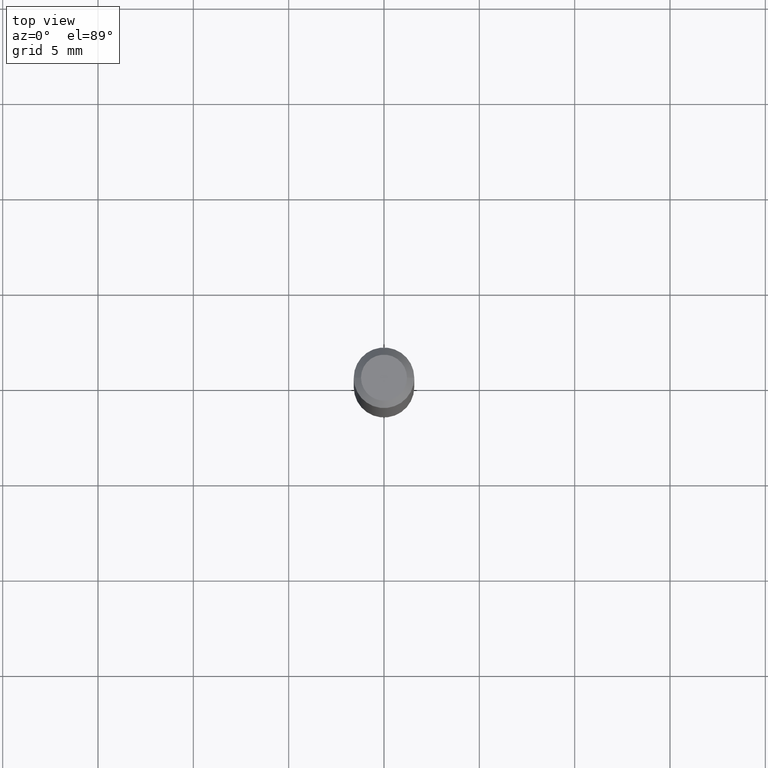
[diagram: clean part render]
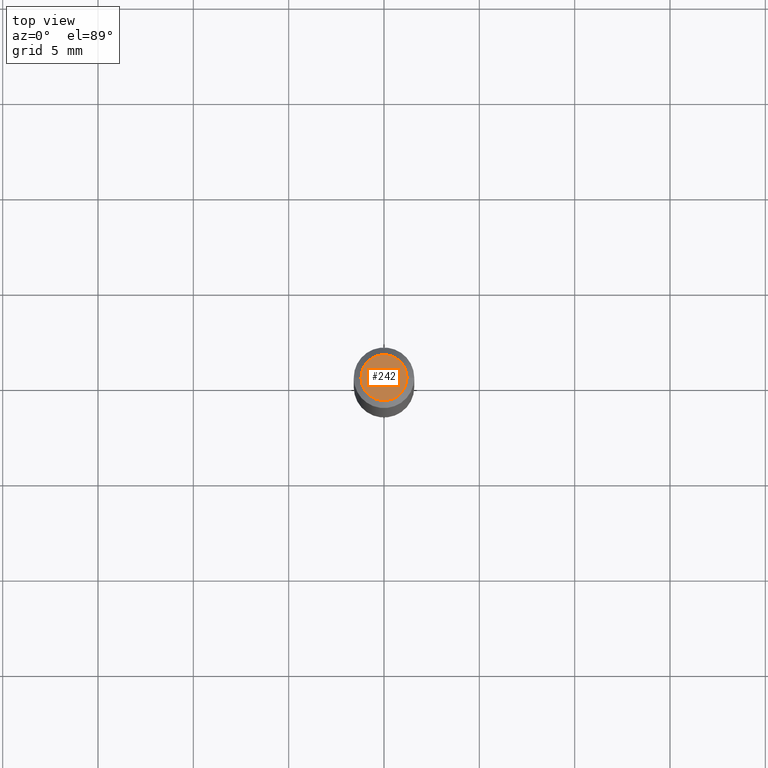
[diagram: same view with one face highlighted and labeled with its STEP entity id]
A machine part, top view. The second image highlights one B-rep face of the part: STEP entity #242.
In plain terms, the highlighted planar face has unit normal (0, -0, -1).
Its self-contained STEP definition (entity closure, byte-faithful):
#46 = AXIS2_PLACEMENT_3D ( 'NONE', #113, #71, #354 ) ;
#71 = DIRECTION ( 'NONE',  ( -2.445468806185136597E-29, 3.491481338843145583E-15, 1.000000000000000000 ) ) ;
#91 = FACE_OUTER_BOUND ( 'NONE', #134, .T. ) ;
#113 = CARTESIAN_POINT ( 'NONE',  ( -6.680649051745406845E-45, 9.538196290434862081E-31, 2.731847993664263218E-16 ) ) ;
#130 = AXIS2_PLACEMENT_3D ( 'NONE', #409, #507, #420 ) ;
#134 = EDGE_LOOP ( 'NONE', ( #359, #415 ) ) ;
#160 = VERTEX_POINT ( 'NONE', #516 ) ;
#167 = PLANE ( 'NONE',  #327 ) ;
#171 = CARTESIAN_POINT ( 'NONE',  ( 3.316907271900976589E-16, 0.04750000000000000749, -2.925296391183627249E-17 ) ) ;
#200 = EDGE_CURVE ( 'NONE', #291, #160, #357, .T. ) ;
#205 = CIRCLE ( 'NONE', #46, 0.04750000000000000749 ) ;
#242 = ADVANCED_FACE ( 'NONE', ( #91 ), #167, .F. ) ;
#291 = VERTEX_POINT ( 'NONE', #505 ) ;
#327 = AXIS2_PLACEMENT_3D ( 'NONE', #171, #331, #384 ) ;
#331 = DIRECTION ( 'NONE',  ( 2.438088387897960049E-29, -3.491481338843145188E-15, -1.000000000000000000 ) ) ;
#354 = DIRECTION ( 'NONE',  ( 1.000000000000000000, -6.982962677686266711E-15, 4.852736867747365086E-29 ) ) ;
#357 = CIRCLE ( 'NONE', #130, 0.04750000000000000749 ) ;
#359 = ORIENTED_EDGE ( 'NONE', *, *, #200, .T. ) ;
#369 = EDGE_CURVE ( 'NONE', #160, #291, #205, .T. ) ;
#384 = DIRECTION ( 'NONE',  ( -1.000000000000000000, 6.982962677686265922E-15, -4.876176775795935793E-29 ) ) ;
#409 = CARTESIAN_POINT ( 'NONE',  ( -6.680649051745406845E-45, 9.538196290434862081E-31, 2.731847993664263218E-16 ) ) ;
#415 = ORIENTED_EDGE ( 'NONE', *, *, #369, .T. ) ;
#420 = DIRECTION ( 'NONE',  ( 1.000000000000000000, -6.982962677686266711E-15, 4.852736867747365086E-29 ) ) ;
#505 = CARTESIAN_POINT ( 'NONE',  ( -0.04750000000000000749, 3.578768372314221353E-16, 2.731847993664239060E-16 ) ) ;
#507 = DIRECTION ( 'NONE',  ( -2.445468806185136597E-29, 3.491481338843145583E-15, 1.000000000000000000 ) ) ;
#516 = CARTESIAN_POINT ( 'NONE',  ( 0.04750000000000000749, -4.035134999187568762E-16, 2.731847993664288856E-16 ) ) ;